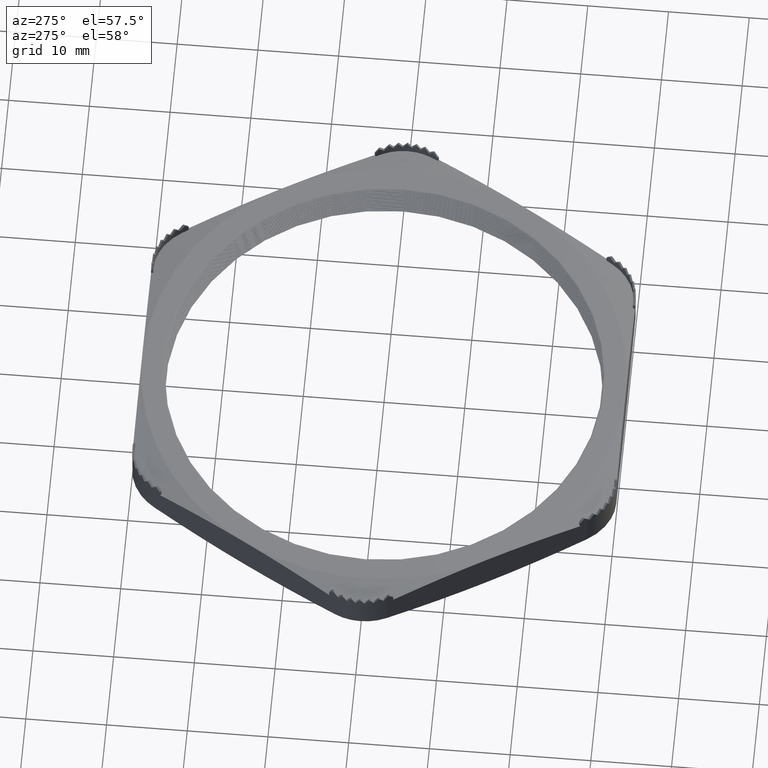
[diagram: clean part render]
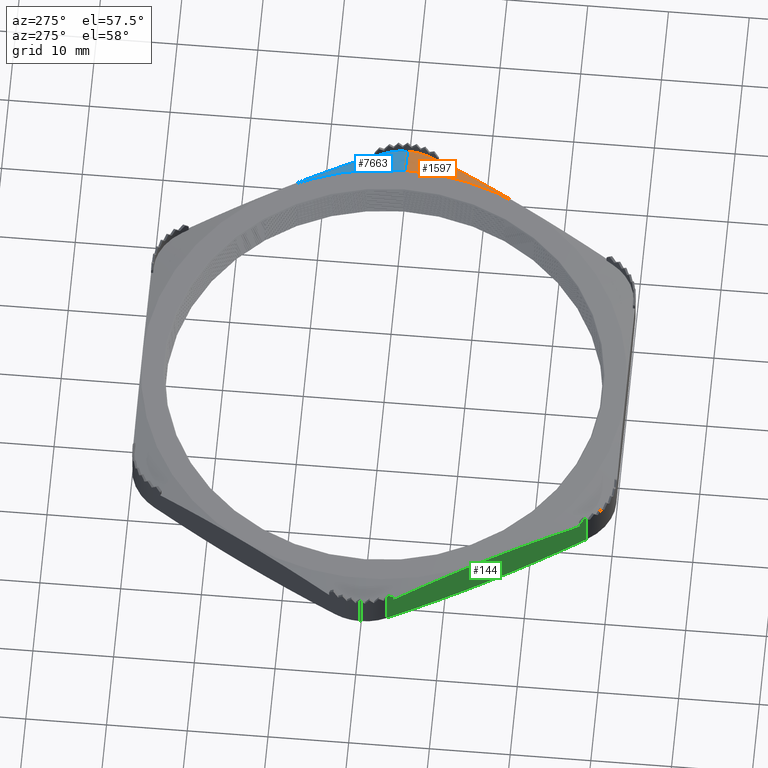
[diagram: same view with three faces highlighted in distinct colors, each labeled with its STEP entity id]
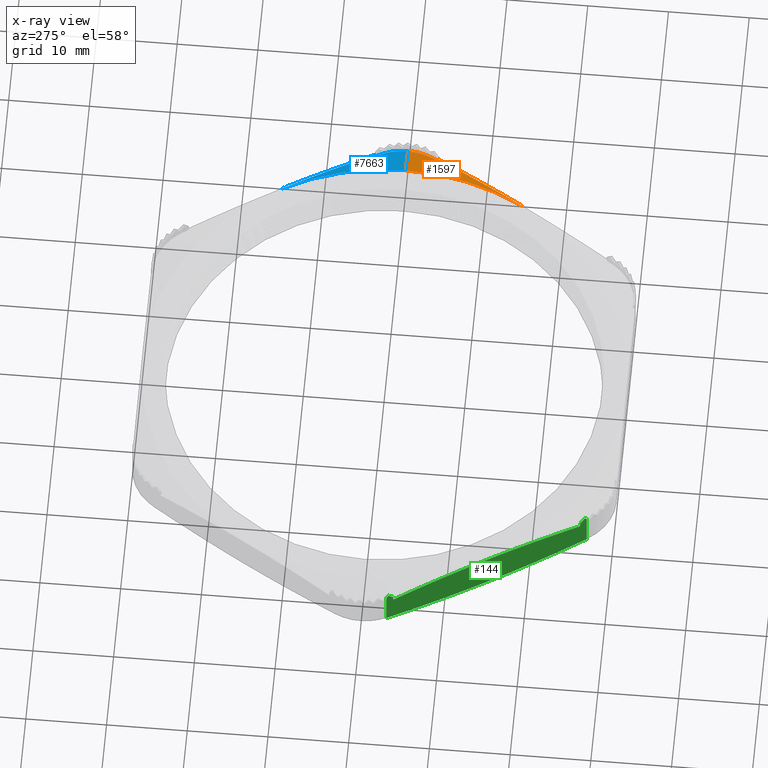
[diagram: x-ray of the same camera — body ghosted, the three highlighted faces saturated]
A machine part, auxiliary view with three faces highlighted in distinct colors.
The next image is the same camera in x-ray (body ghosted, the three faces saturated) — at least one of them is partly hidden behind the body in this view.
Their STEP definitions:

[orange] entity #1597 — the highlighted conical surface has half-angle 75 deg.
#208 = EDGE_CURVE ( 'NONE', #209, #219, #3071, .T. ) ;
#209 = VERTEX_POINT ( 'NONE', #3067 ) ;
#219 = VERTEX_POINT ( 'NONE', #3106 ) ;
#756 = VERTEX_POINT ( 'NONE', #4158 ) ;
#758 = EDGE_CURVE ( 'NONE', #759, #756, #4157, .T. ) ;
#759 = VERTEX_POINT ( 'NONE', #4156 ) ;
#1129 = EDGE_CURVE ( 'NONE', #209, #759, #4960, .T. ) ;
#1576 = ORIENTED_EDGE ( 'NONE', *, *, #1577, .T. ) ;
#1577 = EDGE_CURVE ( 'NONE', #756, #1578, #5735, .T. ) ;
#1578 = VERTEX_POINT ( 'NONE', #5734 ) ;
#1579 = ORIENTED_EDGE ( 'NONE', *, *, #1580, .T. ) ;
#1580 = EDGE_CURVE ( 'NONE', #1578, #1581, #5729, .T. ) ;
#1581 = VERTEX_POINT ( 'NONE', #5728 ) ;
#1582 = ORIENTED_EDGE ( 'NONE', *, *, #1583, .T. ) ;
#1583 = EDGE_CURVE ( 'NONE', #1581, #219, #5721, .T. ) ;
#1597 = ADVANCED_FACE ( 'NONE', ( #5745 ), #5740, .T. ) ;
#1598 = EDGE_LOOP ( 'NONE', ( #1599, #1600, #1601, #1576, #1579, #1582 ) ) ;
#1599 = ORIENTED_EDGE ( 'NONE', *, *, #208, .F. ) ;
#1600 = ORIENTED_EDGE ( 'NONE', *, *, #1129, .T. ) ;
#1601 = ORIENTED_EDGE ( 'NONE', *, *, #758, .T. ) ;
#3067 = CARTESIAN_POINT ( 'NONE',  ( 1.179999999999999700, 0.0000000000000000000, 0.2000000000000000100 ) ) ;
#3068 = DIRECTION ( 'NONE',  ( 0.9659258262890690900, 0.0000000000000000000, -0.2588190451025179600 ) ) ;
#3069 = VECTOR ( 'NONE', #3068, 39.37007874015748100 ) ;
#3070 = CARTESIAN_POINT ( 'NONE',  ( 1.179999999999999900, 0.0000000000000000000, 0.2000000000000000100 ) ) ;
#3071 = LINE ( 'NONE', #3070, #3069 ) ;
#3106 = CARTESIAN_POINT ( 'NONE',  ( 1.313871500692704000, -3.006357605901743000E-022, 0.1641292394998479200 ) ) ;
#4150 = CARTESIAN_POINT ( 'NONE',  ( 1.272377851638819600, -0.1561769145362297800, 0.1726887643336982300 ) ) ;
#4151 = CARTESIAN_POINT ( 'NONE',  ( 1.230633205776622500, -0.2284807621135248900, 0.1814305869340265300 ) ) ;
#4152 = CARTESIAN_POINT ( 'NONE',  ( 1.188888559914425400, -0.3007846096908198300, 0.1883107931896817700 ) ) ;
#4153 = CARTESIAN_POINT ( 'NONE',  ( 1.105399268190031800, -0.4453923048454100900, 0.1976007509392640500 ) ) ;
#4154 = CARTESIAN_POINT ( 'NONE',  ( 1.063654622327834300, -0.5176961524227050600, 0.1999999999999999300 ) ) ;
#4155 = CARTESIAN_POINT ( 'NONE',  ( 1.021909976465637200, -0.5900000000000000800, 0.2000000000000000100 ) ) ;
#4156 = CARTESIAN_POINT ( 'NONE',  ( 1.021909976465637200, -0.5900000000000000800, 0.2000000000000000100 ) ) ;
#4157 = B_SPLINE_CURVE_WITH_KNOTS ( 'NONE', 3,
 ( #4155, #4154, #4153, #4152, #4151, #4150 ),
 .UNSPECIFIED., .F., .F.,
 ( 4, 2, 4 ),
 ( 0.01363839899890499800, 0.02000028302830381800, 0.02636216705770264000 ),
 .UNSPECIFIED. ) ;
#4158 = CARTESIAN_POINT ( 'NONE',  ( 1.272377851638819600, -0.1561769145362297800, 0.1726887643336982300 ) ) ;
#4957 = DIRECTION ( 'NONE',  ( -1.000000000000000000, 0.0000000000000000000, 0.0000000000000000000 ) ) ;
#4958 = DIRECTION ( 'NONE',  ( 0.0000000000000000000, 0.0000000000000000000, -1.000000000000000000 ) ) ;
#4959 = AXIS2_PLACEMENT_3D ( 'NONE', #4965, #4958, #4957 ) ;
#4960 = CIRCLE ( 'NONE', #4959, 1.179999999999999700 ) ;
#4965 = CARTESIAN_POINT ( 'NONE',  ( 0.0000000000000000000, 0.0000000000000000000, 0.2000000000000000100 ) ) ;
#5710 = CARTESIAN_POINT ( 'NONE',  ( 1.313871500692704000, -3.006357605901743000E-022, 0.1641292394998479200 ) ) ;
#5711 = CARTESIAN_POINT ( 'NONE',  ( 1.313871500692704000, -0.01045016699490632100, 0.1641292394998480600 ) ) ;
#5712 = CARTESIAN_POINT ( 'NONE',  ( 1.313191895565543300, -0.02088066179217583400, 0.1642779791093010300 ) ) ;
#5713 = CARTESIAN_POINT ( 'NONE',  ( 1.310453873109724600, -0.04170173258396658200, 0.1648783823888427800 ) ) ;
#5714 = CARTESIAN_POINT ( 'NONE',  ( 1.308372874407205000, -0.05214360480027984600, 0.1653350162078105200 ) ) ;
#5715 = CARTESIAN_POINT ( 'NONE',  ( 1.300215353471476700, -0.08250975391725859400, 0.1671307488312213900 ) ) ;
#5716 = CARTESIAN_POINT ( 'NONE',  ( 1.292248507484286000, -0.1017599290321551000, 0.1688890675615374300 ) ) ;
#5717 = CARTESIAN_POINT ( 'NONE',  ( 1.281717597600970700, -0.1199999999999874500, 0.1712429415155153100 ) ) ;
#5721 = B_SPLINE_CURVE_WITH_KNOTS ( 'NONE', 3,
 ( #5717, #5716, #5715, #5714, #5713, #5712, #5711, #5710 ),
 .UNSPECIFIED., .F., .F.,
 ( 4, 2, 2, 4 ),
 ( 2.291159481009074300E-007, 0.001592449938205310700, 0.002388560349333915600, 0.003184670760462520300 ),
 .UNSPECIFIED. ) ;
#5724 = CARTESIAN_POINT ( 'NONE',  ( 1.281717597600970700, -0.1199999999999874500, 0.1712429415155153100 ) ) ;
#5725 = CARTESIAN_POINT ( 'NONE',  ( 1.275719642413500000, -0.1303887631262072900, 0.1725836072936244300 ) ) ;
#5726 = CARTESIAN_POINT ( 'NONE',  ( 1.269719608800683700, -0.1407811261907263300, 0.1738876239740484200 ) ) ;
#5727 = CARTESIAN_POINT ( 'NONE',  ( 1.263717597600970700, -0.1511769145362274500, 0.1751536005481835700 ) ) ;
#5728 = CARTESIAN_POINT ( 'NONE',  ( 1.281717597600970700, -0.1199999999999874500, 0.1712429415155153100 ) ) ;
#5729 = B_SPLINE_CURVE_WITH_KNOTS ( 'NONE', 3,
 ( #5727, #5726, #5725, #5724 ),
 .UNSPECIFIED., .F., .F.,
 ( 4, 4 ),
 ( 2.322196998498872300E-007, 0.0009200115170292006900 ),
 .UNSPECIFIED. ) ;
#5730 = CARTESIAN_POINT ( 'NONE',  ( 1.263717597600970700, -0.1511769145362274500, 0.1751536005481835700 ) ) ;
#5731 = CARTESIAN_POINT ( 'NONE',  ( 1.266604457518858200, -0.1528436438869330000, 0.1743324972701846600 ) ) ;
#5732 = CARTESIAN_POINT ( 'NONE',  ( 1.269491208144156700, -0.1545103101375326400, 0.1735108814908685700 ) ) ;
#5733 = CARTESIAN_POINT ( 'NONE',  ( 1.272377851638819600, -0.1561769145362297800, 0.1726887643336982300 ) ) ;
#5734 = CARTESIAN_POINT ( 'NONE',  ( 1.263717597600970700, -0.1511769145362274500, 0.1751536005481835700 ) ) ;
#5735 = B_SPLINE_CURVE_WITH_KNOTS ( 'NONE', 3,
 ( #5733, #5732, #5731, #5730 ),
 .UNSPECIFIED., .F., .F.,
 ( 4, 4 ),
 ( 2.378608542534042700E-007, 0.0002618398799516033200 ),
 .UNSPECIFIED. ) ;
#5736 = DIRECTION ( 'NONE',  ( 1.000000000000000000, 0.0000000000000000000, 0.0000000000000000000 ) ) ;
#5737 = DIRECTION ( 'NONE',  ( 0.0000000000000000000, 0.0000000000000000000, -1.000000000000000000 ) ) ;
#5738 = CARTESIAN_POINT ( 'NONE',  ( 0.0000000000000000000, 0.0000000000000000000, 0.2000000000000000100 ) ) ;
#5739 = AXIS2_PLACEMENT_3D ( 'NONE', #5738, #5737, #5736 ) ;
#5740 = CONICAL_SURFACE ( 'NONE', #5739, 1.179999999999999900, 1.308996938995750100 ) ;
#5745 = FACE_OUTER_BOUND ( 'NONE', #1598, .T. ) ;

[blue] entity #7663 — the highlighted conical surface has half-angle 75 deg.
#27 = EDGE_CURVE ( 'NONE', #30, #258, #2765, .T. ) ;
#30 = VERTEX_POINT ( 'NONE', #2754 ) ;
#31 = ORIENTED_EDGE ( 'NONE', *, *, #27, .T. ) ;
#32 = EDGE_CURVE ( 'NONE', #34, #30, #2753, .T. ) ;
#33 = ORIENTED_EDGE ( 'NONE', *, *, #32, .T. ) ;
#34 = VERTEX_POINT ( 'NONE', #2752 ) ;
#207 = ORIENTED_EDGE ( 'NONE', *, *, #208, .T. ) ;
#208 = EDGE_CURVE ( 'NONE', #209, #219, #3071, .T. ) ;
#209 = VERTEX_POINT ( 'NONE', #3067 ) ;
#211 = ORIENTED_EDGE ( 'NONE', *, *, #217, .T. ) ;
#212 = EDGE_CURVE ( 'NONE', #218, #34, #3066, .T. ) ;
#213 = ORIENTED_EDGE ( 'NONE', *, *, #212, .T. ) ;
#217 = EDGE_CURVE ( 'NONE', #219, #218, #3105, .T. ) ;
#218 = VERTEX_POINT ( 'NONE', #3104 ) ;
#219 = VERTEX_POINT ( 'NONE', #3106 ) ;
#256 = EDGE_CURVE ( 'NONE', #258, #209, #3186, .T. ) ;
#258 = VERTEX_POINT ( 'NONE', #3176 ) ;
#259 = ORIENTED_EDGE ( 'NONE', *, *, #256, .T. ) ;
#260 = EDGE_LOOP ( 'NONE', ( #259, #207, #211, #213, #33, #31 ) ) ;
#2748 = CARTESIAN_POINT ( 'NONE',  ( 1.266604457518852600, 0.1528436438869551500, 0.1743324972701854000 ) ) ;
#2749 = CARTESIAN_POINT ( 'NONE',  ( 1.263717597600968000, 0.1511769145362511800, 0.1751536005481835200 ) ) ;
#2752 = CARTESIAN_POINT ( 'NONE',  ( 1.263717597600968000, 0.1511769145362511800, 0.1751536005481835200 ) ) ;
#2753 = B_SPLINE_CURVE_WITH_KNOTS ( 'NONE', 3,
 ( #2749, #2748, #2803, #2802 ),
 .UNSPECIFIED., .F., .F.,
 ( 4, 4 ),
 ( 2.378430060962398200E-007, 0.0002618398621031949700 ),
 .UNSPECIFIED. ) ;
#2754 = CARTESIAN_POINT ( 'NONE',  ( 1.272377851638808200, 0.1561769145362494900, 0.1726887643337006200 ) ) ;
#2757 = CARTESIAN_POINT ( 'NONE',  ( 1.021909976465637600, 0.5899999999999999700, 0.2000000000000000100 ) ) ;
#2758 = CARTESIAN_POINT ( 'NONE',  ( 1.063654622327833100, 0.5176961524227083900, 0.1999999999999999300 ) ) ;
#2759 = CARTESIAN_POINT ( 'NONE',  ( 1.105399268190028000, 0.4453923048454165900, 0.1976007509392641300 ) ) ;
#2760 = CARTESIAN_POINT ( 'NONE',  ( 1.188888559914418100, 0.3007846096908330900, 0.1883107931896828300 ) ) ;
#2761 = CARTESIAN_POINT ( 'NONE',  ( 1.230633205776612500, 0.2284807621135412600, 0.1814305869340281400 ) ) ;
#2762 = CARTESIAN_POINT ( 'NONE',  ( 1.272377851638808200, 0.1561769145362494900, 0.1726887643337006200 ) ) ;
#2765 = B_SPLINE_CURVE_WITH_KNOTS ( 'NONE', 3,
 ( #2762, #2761, #2760, #2759, #2758, #2757 ),
 .UNSPECIFIED., .F., .F.,
 ( 4, 2, 4 ),
 ( 0.0009146309401079606000, 0.007276514969506489400, 0.01363839899890501700 ),
 .UNSPECIFIED. ) ;
#2802 = CARTESIAN_POINT ( 'NONE',  ( 1.272377851638808200, 0.1561769145362494900, 0.1726887643337006200 ) ) ;
#2803 = CARTESIAN_POINT ( 'NONE',  ( 1.269491208144148700, 0.1545103101375532600, 0.1735108814908701000 ) ) ;
#3066 = B_SPLINE_CURVE_WITH_KNOTS ( 'NONE', 3,
 ( #3116, #3115, #3114, #3113 ),
 .UNSPECIFIED., .F., .F.,
 ( 4, 4 ),
 ( 2.323768011841060600E-007, 0.0009200116741305325200 ),
 .UNSPECIFIED. ) ;
#3067 = CARTESIAN_POINT ( 'NONE',  ( 1.179999999999999700, 0.0000000000000000000, 0.2000000000000000100 ) ) ;
#3068 = DIRECTION ( 'NONE',  ( 0.9659258262890690900, 0.0000000000000000000, -0.2588190451025179600 ) ) ;
#3069 = VECTOR ( 'NONE', #3068, 39.37007874015748100 ) ;
#3070 = CARTESIAN_POINT ( 'NONE',  ( 1.179999999999999900, 0.0000000000000000000, 0.2000000000000000100 ) ) ;
#3071 = LINE ( 'NONE', #3070, #3069 ) ;
#3092 = CARTESIAN_POINT ( 'NONE',  ( 1.281717597600968300, 0.1200000000000119700, 0.1712429415155103400 ) ) ;
#3093 = CARTESIAN_POINT ( 'NONE',  ( 1.286975127755027400, 0.1108936906508559400, 0.1700677758907956900 ) ) ;
#3094 = CARTESIAN_POINT ( 'NONE',  ( 1.291637829818445000, 0.1014238645315570800, 0.1690315216519381600 ) ) ;
#3095 = CARTESIAN_POINT ( 'NONE',  ( 1.299621832157209100, 0.08213258939715609200, 0.1672628077108552500 ) ) ;
#3096 = CARTESIAN_POINT ( 'NONE',  ( 1.302967507687611500, 0.07227510349983545800, 0.1665249053182990500 ) ) ;
#3097 = CARTESIAN_POINT ( 'NONE',  ( 1.311073475678079700, 0.04207026373487696800, 0.1647405388707627900 ) ) ;
#3098 = CARTESIAN_POINT ( 'NONE',  ( 1.313871500692704200, 0.02086813837924414100, 0.1641292394998476200 ) ) ;
#3099 = CARTESIAN_POINT ( 'NONE',  ( 1.313871500692704000, -3.006357605901743000E-022, 0.1641292394998479200 ) ) ;
#3104 = CARTESIAN_POINT ( 'NONE',  ( 1.281717597600968300, 0.1200000000000119700, 0.1712429415155103400 ) ) ;
#3105 = B_SPLINE_CURVE_WITH_KNOTS ( 'NONE', 3,
 ( #3099, #3098, #3097, #3096, #3095, #3094, #3093, #3092 ),
 .UNSPECIFIED., .F., .F.,
 ( 4, 2, 2, 4 ),
 ( 0.003184670760462520300, 0.004774438869688564000, 0.005569322924301588200, 0.006364206978914612400 ),
 .UNSPECIFIED. ) ;
#3106 = CARTESIAN_POINT ( 'NONE',  ( 1.313871500692704000, -3.006357605901743000E-022, 0.1641292394998479200 ) ) ;
#3113 = CARTESIAN_POINT ( 'NONE',  ( 1.263717597600968000, 0.1511769145362511800, 0.1751536005481835200 ) ) ;
#3114 = CARTESIAN_POINT ( 'NONE',  ( 1.269719608800681500, 0.1407811261907502000, 0.1738876239740483300 ) ) ;
#3115 = CARTESIAN_POINT ( 'NONE',  ( 1.275719642413498200, 0.1303887631262313200, 0.1725836072936243200 ) ) ;
#3116 = CARTESIAN_POINT ( 'NONE',  ( 1.281717597600968300, 0.1200000000000119700, 0.1712429415155103400 ) ) ;
#3176 = CARTESIAN_POINT ( 'NONE',  ( 1.021909976465637600, 0.5899999999999999700, 0.2000000000000000100 ) ) ;
#3182 = DIRECTION ( 'NONE',  ( -1.000000000000000000, 0.0000000000000000000, 0.0000000000000000000 ) ) ;
#3183 = DIRECTION ( 'NONE',  ( 0.0000000000000000000, 0.0000000000000000000, -1.000000000000000000 ) ) ;
#3184 = CARTESIAN_POINT ( 'NONE',  ( 0.0000000000000000000, 0.0000000000000000000, 0.2000000000000000100 ) ) ;
#3185 = AXIS2_PLACEMENT_3D ( 'NONE', #3184, #3183, #3182 ) ;
#3186 = CIRCLE ( 'NONE', #3185, 1.179999999999999700 ) ;
#7496 = DIRECTION ( 'NONE',  ( 1.000000000000000000, 0.0000000000000000000, 0.0000000000000000000 ) ) ;
#7497 = DIRECTION ( 'NONE',  ( 0.0000000000000000000, 0.0000000000000000000, -1.000000000000000000 ) ) ;
#7498 = CARTESIAN_POINT ( 'NONE',  ( 0.0000000000000000000, 0.0000000000000000000, 0.2000000000000000100 ) ) ;
#7499 = AXIS2_PLACEMENT_3D ( 'NONE', #7498, #7497, #7496 ) ;
#7500 = CONICAL_SURFACE ( 'NONE', #7499, 1.179999999999999900, 1.308996938995750100 ) ;
#7501 = FACE_OUTER_BOUND ( 'NONE', #260, .T. ) ;
#7663 = ADVANCED_FACE ( 'NONE', ( #7501 ), #7500, .T. ) ;

[green] entity #144 — the highlighted planar face has unit normal (0.866, 0.5, 0).
#138 = EDGE_LOOP ( 'NONE', ( #140, #7650, #737, #652, #655, #658, #661, #723, #725, #726, #729, #732 ) ) ;
#139 = VERTEX_POINT ( 'NONE', #2933 ) ;
#140 = ORIENTED_EDGE ( 'NONE', *, *, #143, .T. ) ;
#142 = VERTEX_POINT ( 'NONE', #2988 ) ;
#143 = EDGE_CURVE ( 'NONE', #142, #139, #2987, .T. ) ;
#144 = ADVANCED_FACE ( 'NONE', ( #2983 ), #2982, .F. ) ;
#267 = EDGE_CURVE ( 'NONE', #412, #414, #3238, .T. ) ;
#412 = VERTEX_POINT ( 'NONE', #3501 ) ;
#414 = VERTEX_POINT ( 'NONE', #3503 ) ;
#650 = EDGE_CURVE ( 'NONE', #651, #736, #3911, .T. ) ;
#651 = VERTEX_POINT ( 'NONE', #3965 ) ;
#652 = ORIENTED_EDGE ( 'NONE', *, *, #653, .F. ) ;
#653 = EDGE_CURVE ( 'NONE', #654, #651, #3964, .T. ) ;
#654 = VERTEX_POINT ( 'NONE', #3963 ) ;
#655 = ORIENTED_EDGE ( 'NONE', *, *, #656, .F. ) ;
#656 = EDGE_CURVE ( 'NONE', #657, #654, #3956, .T. ) ;
#657 = VERTEX_POINT ( 'NONE', #3955 ) ;
#658 = ORIENTED_EDGE ( 'NONE', *, *, #659, .T. ) ;
#659 = EDGE_CURVE ( 'NONE', #657, #660, #3948, .T. ) ;
#660 = VERTEX_POINT ( 'NONE', #3944 ) ;
#661 = ORIENTED_EDGE ( 'NONE', *, *, #721, .T. ) ;
#721 = EDGE_CURVE ( 'NONE', #660, #722, #4073, .T. ) ;
#722 = VERTEX_POINT ( 'NONE', #4069 ) ;
#723 = ORIENTED_EDGE ( 'NONE', *, *, #724, .T. ) ;
#724 = EDGE_CURVE ( 'NONE', #722, #412, #4068, .T. ) ;
#725 = ORIENTED_EDGE ( 'NONE', *, *, #267, .T. ) ;
#726 = ORIENTED_EDGE ( 'NONE', *, *, #727, .F. ) ;
#727 = EDGE_CURVE ( 'NONE', #728, #414, #4117, .T. ) ;
#728 = VERTEX_POINT ( 'NONE', #4116 ) ;
#729 = ORIENTED_EDGE ( 'NONE', *, *, #730, .F. ) ;
#730 = EDGE_CURVE ( 'NONE', #731, #728, #4109, .T. ) ;
#731 = VERTEX_POINT ( 'NONE', #4108 ) ;
#732 = ORIENTED_EDGE ( 'NONE', *, *, #733, .T. ) ;
#733 = EDGE_CURVE ( 'NONE', #731, #142, #4101, .T. ) ;
#735 = EDGE_CURVE ( 'NONE', #139, #736, #4097, .T. ) ;
#736 = VERTEX_POINT ( 'NONE', #4093 ) ;
#737 = ORIENTED_EDGE ( 'NONE', *, *, #650, .F. ) ;
#2933 = CARTESIAN_POINT ( 'NONE',  ( -0.7587403953702880300, -1.045823085463764000, 0.2258999999999999600 ) ) ;
#2978 = DIRECTION ( 'NONE',  ( -0.4999999999999995600, 0.8660254037844388200, 0.0000000000000000000 ) ) ;
#2979 = DIRECTION ( 'NONE',  ( 0.8660254037844389300, 0.4999999999999996100, 0.0000000000000000000 ) ) ;
#2980 = CARTESIAN_POINT ( 'NONE',  ( -1.362546635287516800, 4.058812191072356400E-016, 0.2000000000000000100 ) ) ;
#2981 = AXIS2_PLACEMENT_3D ( 'NONE', #2980, #2979, #2978 ) ;
#2982 = PLANE ( 'NONE',  #2981 ) ;
#2983 = FACE_OUTER_BOUND ( 'NONE', #138, .T. ) ;
#2984 = DIRECTION ( 'NONE',  ( -0.3442910753564975000, 0.5963296351099792700, 0.7251583425152506900 ) ) ;
#2985 = VECTOR ( 'NONE', #2984, 39.37007874015748100 ) ;
#2986 = CARTESIAN_POINT ( 'NONE',  ( -1.038565995774288500, -0.5611509283055689000, 0.8152788224751037500 ) ) ;
#2987 = LINE ( 'NONE', #2986, #2985 ) ;
#2988 = CARTESIAN_POINT ( 'NONE',  ( -0.7534421012924622500, -1.054999999999999700, 0.2147405409647744900 ) ) ;
#3235 = DIRECTION ( 'NONE',  ( 0.0000000000000000000, 0.0000000000000000000, -1.000000000000000000 ) ) ;
#3236 = VECTOR ( 'NONE', #3235, 39.37007874015748100 ) ;
#3237 = CARTESIAN_POINT ( 'NONE',  ( -1.290377851638813800, -0.1249999999999994000, 0.2000000000000000100 ) ) ;
#3238 = LINE ( 'NONE', #3237, #3236 ) ;
#3501 = CARTESIAN_POINT ( 'NONE',  ( -1.290377851638813800, -0.1249999999999994000, 0.2136363051197473800 ) ) ;
#3503 = CARTESIAN_POINT ( 'NONE',  ( -1.290377851638813800, -0.1249999999999994000, 0.03119414724621201500 ) ) ;
#3911 = LINE ( 'NONE', #3968, #3967 ) ;
#3944 = CARTESIAN_POINT ( 'NONE',  ( -1.272377851640414300, -0.1561769145369065700, 0.1964999999991219600 ) ) ;
#3945 = DIRECTION ( 'NONE',  ( 0.0000000000000000000, 0.0000000000000000000, 1.000000000000000000 ) ) ;
#3946 = VECTOR ( 'NONE', #3945, 39.37007874015748100 ) ;
#3947 = CARTESIAN_POINT ( 'NONE',  ( -1.272377851638813300, -0.1561769145362429400, -19685.03937007874300 ) ) ;
#3948 = LINE ( 'NONE', #3947, #3946 ) ;
#3949 = CARTESIAN_POINT ( 'NONE',  ( -1.021909976465637600, -0.5899999999999994100, 0.2000000000000000100 ) ) ;
#3950 = CARTESIAN_POINT ( 'NONE',  ( -1.063654622327833600, -0.5176961524227069500, 0.1999999999999999800 ) ) ;
#3951 = CARTESIAN_POINT ( 'NONE',  ( -1.105399268190029100, -0.4453923048454136400, 0.1976007509392640200 ) ) ;
#3952 = CARTESIAN_POINT ( 'NONE',  ( -1.188888559914420800, -0.3007846096908281500, 0.1883107931896825000 ) ) ;
#3953 = CARTESIAN_POINT ( 'NONE',  ( -1.230633205776616100, -0.2284807621135351600, 0.1814305869340275800 ) ) ;
#3954 = CARTESIAN_POINT ( 'NONE',  ( -1.272377851638812000, -0.1561769145362422500, 0.1726887643336998400 ) ) ;
#3955 = CARTESIAN_POINT ( 'NONE',  ( -1.272377851638812000, -0.1561769145362422500, 0.1726887643336998400 ) ) ;
#3956 = B_SPLINE_CURVE_WITH_KNOTS ( 'NONE', 3,
 ( #3954, #3953, #3952, #3951, #3950, #3949 ),
 .UNSPECIFIED., .F., .F.,
 ( 4, 2, 4 ),
 ( 0.0009146309401077681500, 0.007276514969506394000, 0.01363839899890502100 ),
 .UNSPECIFIED. ) ;
#3957 = CARTESIAN_POINT ( 'NONE',  ( -0.7714421012924590500, -1.023823085463765500, 0.1726887643336988100 ) ) ;
#3958 = CARTESIAN_POINT ( 'NONE',  ( -0.8131867471546556600, -0.9515192378864710800, 0.1814305869340269200 ) ) ;
#3959 = CARTESIAN_POINT ( 'NONE',  ( -0.8549313930168519500, -0.8792153903091770600, 0.1883107931896820500 ) ) ;
#3960 = CARTESIAN_POINT ( 'NONE',  ( -0.9384206847412451800, -0.7346076951545884600, 0.1976007509392640200 ) ) ;
#3961 = CARTESIAN_POINT ( 'NONE',  ( -0.9801653306034411300, -0.6623038475772939900, 0.1999999999999999300 ) ) ;
#3962 = CARTESIAN_POINT ( 'NONE',  ( -1.021909976465637600, -0.5899999999999994100, 0.2000000000000000100 ) ) ;
#3963 = CARTESIAN_POINT ( 'NONE',  ( -1.021909976465637600, -0.5899999999999994100, 0.2000000000000000100 ) ) ;
#3964 = B_SPLINE_CURVE_WITH_KNOTS ( 'NONE', 3,
 ( #3962, #3961, #3960, #3959, #3958, #3957 ),
 .UNSPECIFIED., .F., .F.,
 ( 4, 2, 4 ),
 ( 0.01363839899890502100, 0.02000028302830377000, 0.02636216705770251900 ),
 .UNSPECIFIED. ) ;
#3965 = CARTESIAN_POINT ( 'NONE',  ( -0.7714421012924590500, -1.023823085463765500, 0.1726887643336988100 ) ) ;
#3966 = DIRECTION ( 'NONE',  ( 0.0000000000000000000, 0.0000000000000000000, 1.000000000000000000 ) ) ;
#3967 = VECTOR ( 'NONE', #3966, 39.37007874015748100 ) ;
#3968 = CARTESIAN_POINT ( 'NONE',  ( -0.7714421012924568300, -1.023823085463763800, -19685.03937007874300 ) ) ;
#4065 = DIRECTION ( 'NONE',  ( -0.3269020807049995400, 0.5662110128810414800, -0.7566638081228457300 ) ) ;
#4066 = VECTOR ( 'NONE', #4065, 39.37007874015748900 ) ;
#4067 = CARTESIAN_POINT ( 'NONE',  ( -1.324600119232020300, -0.06572529377834784900, 0.1344237431689949400 ) ) ;
#4068 = LINE ( 'NONE', #4067, #4066 ) ;
#4069 = CARTESIAN_POINT ( 'NONE',  ( -1.285079557560983500, -0.1341769145362428600, 0.2258999999999999600 ) ) ;
#4070 = DIRECTION ( 'NONE',  ( -0.3269020807049992600, 0.5662110128810410300, 0.7566638081228465000 ) ) ;
#4071 = VECTOR ( 'NONE', #4070, 39.37007874015748100 ) ;
#4072 = CARTESIAN_POINT ( 'NONE',  ( -1.311787131616658900, -0.08791803932490487000, 0.2877186786915153500 ) ) ;
#4073 = LINE ( 'NONE', #4072, #4071 ) ;
#4093 = CARTESIAN_POINT ( 'NONE',  ( -0.7714421012897794100, -1.023823085461440100, 0.1964999999991219600 ) ) ;
#4094 = DIRECTION ( 'NONE',  ( -0.3269020807050007600, 0.5662110128810434700, -0.7566638081228437300 ) ) ;
#4095 = VECTOR ( 'NONE', #4094, 39.37007874015748900 ) ;
#4096 = CARTESIAN_POINT ( 'NONE',  ( -1.023249832928082400, -0.5876793005321965200, -0.3863466944085448600 ) ) ;
#4097 = LINE ( 'NONE', #4096, #4095 ) ;
#4098 = DIRECTION ( 'NONE',  ( 0.0000000000000000000, 0.0000000000000000000, 1.000000000000000000 ) ) ;
#4099 = VECTOR ( 'NONE', #4098, 39.37007874015748100 ) ;
#4100 = CARTESIAN_POINT ( 'NONE',  ( -0.7534421012924622500, -1.054999999999999700, 0.2000000000000000100 ) ) ;
#4101 = LINE ( 'NONE', #4100, #4099 ) ;
#4102 = CARTESIAN_POINT ( 'NONE',  ( -1.021909976465638300, -0.5899999999999997500, 0.0000000000000000000 ) ) ;
#4103 = CARTESIAN_POINT ( 'NONE',  ( -0.9771653306034421300, -0.6674999999999996500, -3.001297844601851400E-017 ) ) ;
#4104 = CARTESIAN_POINT ( 'NONE',  ( -0.9324206847412460600, -0.7449999999999995500, 0.002760444505509568600 ) ) ;
#4105 = CARTESIAN_POINT ( 'NONE',  ( -0.8429313930168543800, -0.8999999999999998000, 0.01339954382873618900 ) ) ;
#4106 = CARTESIAN_POINT ( 'NONE',  ( -0.7981867471546578700, -0.9774999999999995900, 0.02126296973872446300 ) ) ;
#4107 = CARTESIAN_POINT ( 'NONE',  ( -0.7534421012924622500, -1.054999999999999700, 0.03119414724621205300 ) ) ;
#4108 = CARTESIAN_POINT ( 'NONE',  ( -0.7534421012924622500, -1.054999999999999700, 0.03119414724621205300 ) ) ;
#4109 = B_SPLINE_CURVE_WITH_KNOTS ( 'NONE', 3,
 ( #4107, #4106, #4105, #4104, #4103, #4102 ),
 .UNSPECIFIED., .F., .F.,
 ( 4, 2, 4 ),
 ( 2.309401076778894600E-007, 0.006819314969506350100, 0.01363839899890502200 ),
 .UNSPECIFIED. ) ;
#4110 = CARTESIAN_POINT ( 'NONE',  ( -1.290377851638813800, -0.1249999999999994000, 0.03119414724621201500 ) ) ;
#4111 = CARTESIAN_POINT ( 'NONE',  ( -1.245633205776617700, -0.2024999999999992400, 0.02126296973872446700 ) ) ;
#4112 = CARTESIAN_POINT ( 'NONE',  ( -1.200888559914421900, -0.2799999999999992500, 0.01339954382873617000 ) ) ;
#4113 = CARTESIAN_POINT ( 'NONE',  ( -1.111399268190030400, -0.4349999999999993300, 0.002760444505509544700 ) ) ;
#4114 = CARTESIAN_POINT ( 'NONE',  ( -1.066654622327833700, -0.5124999999999994000, -2.581116146357592500E-017 ) ) ;
#4115 = CARTESIAN_POINT ( 'NONE',  ( -1.021909976465638300, -0.5899999999999997500, 0.0000000000000000000 ) ) ;
#4116 = CARTESIAN_POINT ( 'NONE',  ( -1.021909976465638300, -0.5899999999999997500, 0.0000000000000000000 ) ) ;
#4117 = B_SPLINE_CURVE_WITH_KNOTS ( 'NONE', 3,
 ( #4115, #4114, #4113, #4112, #4111, #4110 ),
 .UNSPECIFIED., .F., .F.,
 ( 4, 2, 4 ),
 ( 0.01363839899890502200, 0.02045748302830369100, 0.02727656705770236500 ),
 .UNSPECIFIED. ) ;
#7650 = ORIENTED_EDGE ( 'NONE', *, *, #735, .T. ) ;